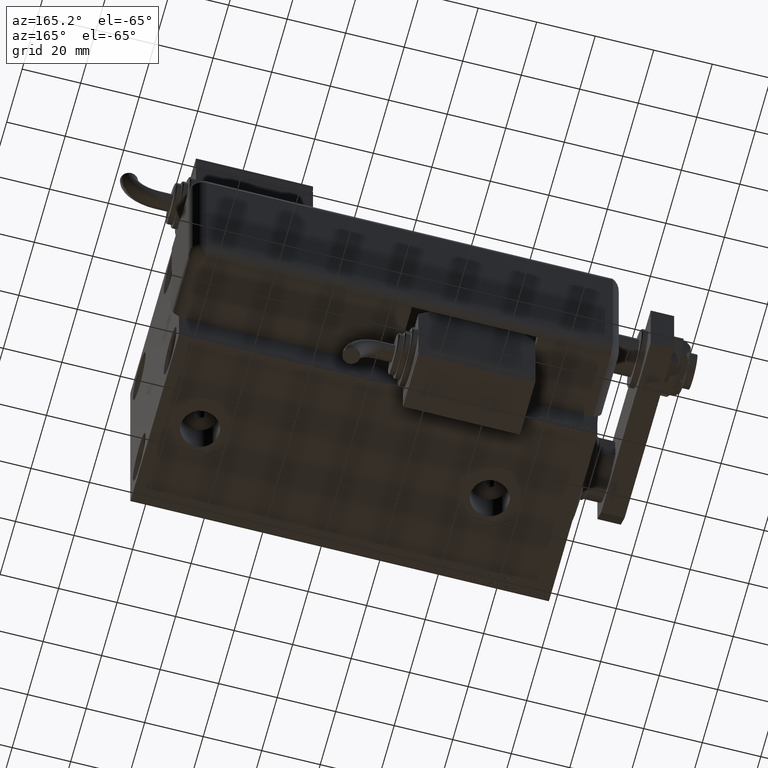
[diagram: clean part render]
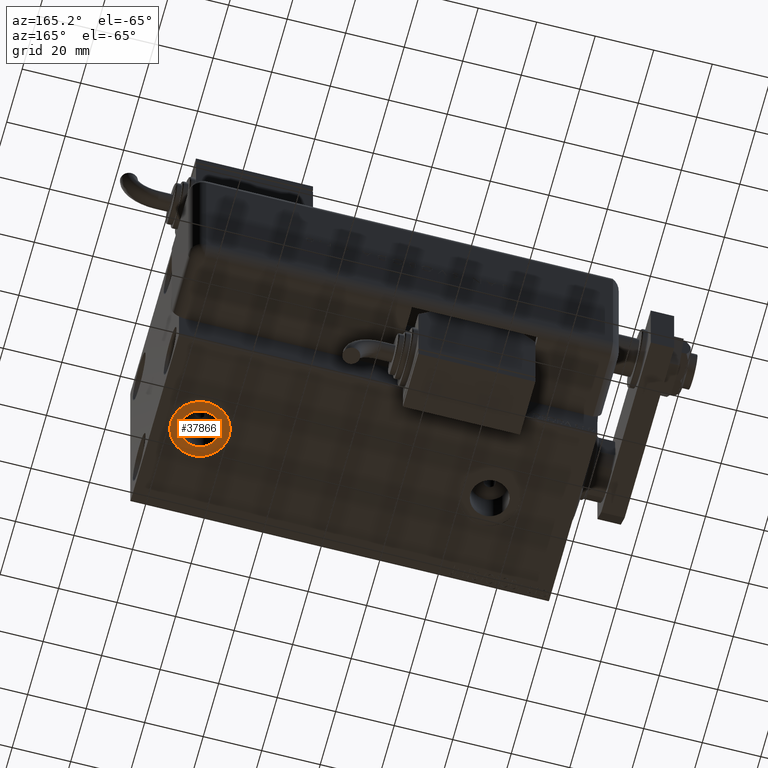
[diagram: same view with one face highlighted and labeled with its STEP entity id]
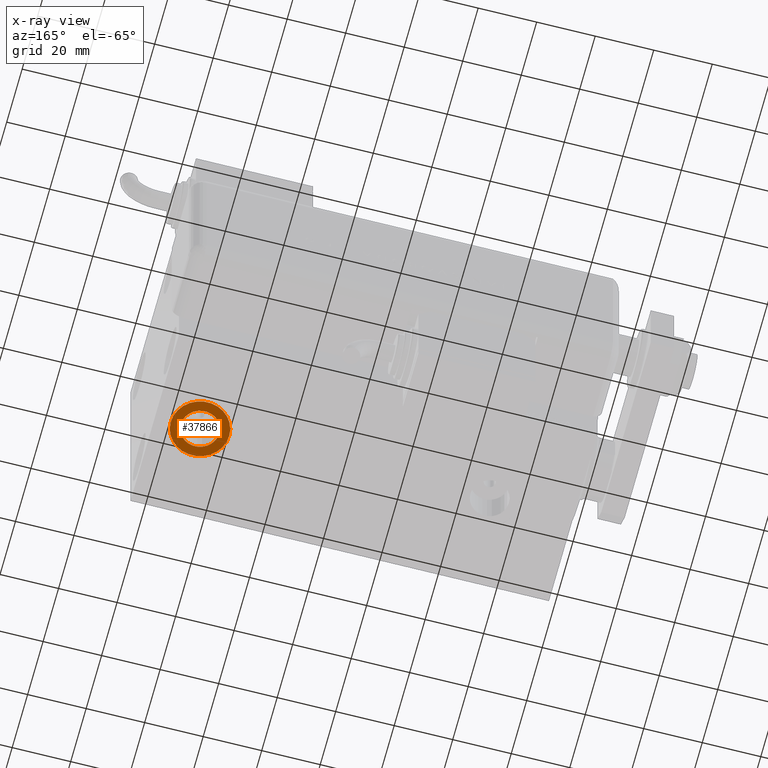
[diagram: x-ray of the same camera — body ghosted, the highlighted face saturated]
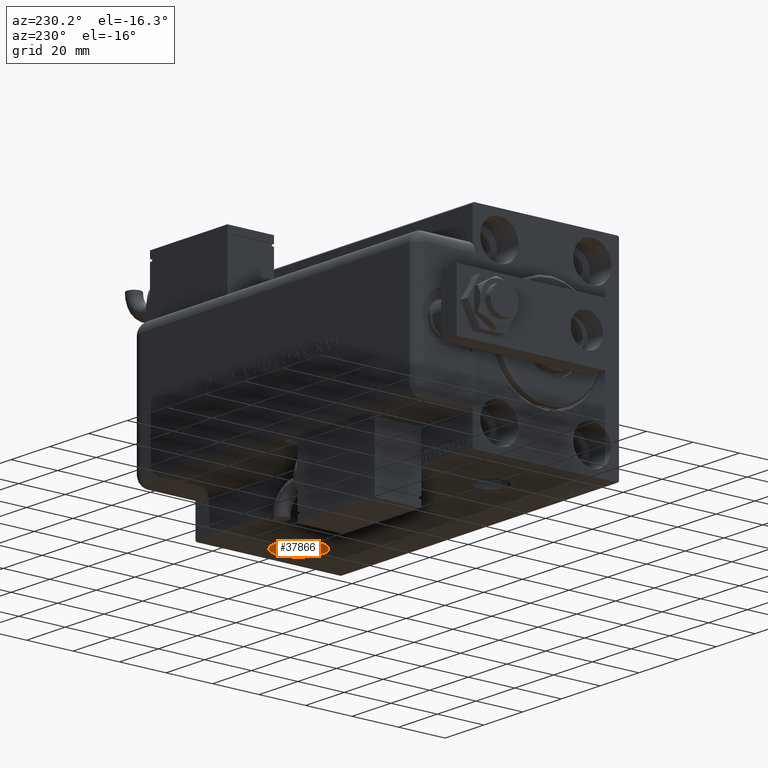
[diagram: same view with one face highlighted and labeled with its STEP entity id]
A machine part, auxiliary view. The second image highlights one B-rep face of the part: STEP entity #37866.
The next image is the same camera in x-ray: the body ghosted, the highlighted face saturated — about 0% of this face is hidden behind the body in this view.
A second angle (auxiliary view) of the same face is appended — the face is thin or edge-on in the first view.
In plain terms, the highlighted planar face has unit normal (0, 0, -1).
Its self-contained STEP definition (entity closure, byte-faithful):
#108 = VERTEX_POINT ( 'NONE', #19921 ) ;
#1171 = AXIS2_PLACEMENT_3D ( 'NONE', #6357, #44592, #53540 ) ;
#1449 = CARTESIAN_POINT ( 'NONE',  ( 137.5000000000000000, -1.323757379001398371E-14, -42.40000000000000568 ) ) ;
#1967 = AXIS2_PLACEMENT_3D ( 'NONE', #44335, #11339, #40327 ) ;
#2510 = EDGE_LOOP ( 'NONE', ( #14130, #54012 ) ) ;
#2946 = CIRCLE ( 'NONE', #6912, 6.580000000000002736 ) ;
#3399 = EDGE_CURVE ( 'NONE', #38848, #14201, #15926, .T. ) ;
#4570 = EDGE_LOOP ( 'NONE', ( #28643, #54650 ) ) ;
#5942 = VERTEX_POINT ( 'NONE', #51023 ) ;
#6357 = CARTESIAN_POINT ( 'NONE',  ( 127.5000000000000000, -1.446222058916133203E-14, -42.40000000000000568 ) ) ;
#6912 = AXIS2_PLACEMENT_3D ( 'NONE', #15674, #28958, #15977 ) ;
#8379 = FACE_BOUND ( 'NONE', #2510, .T. ) ;
#11339 = DIRECTION ( 'NONE',  ( 0.000000000000000000, 0.000000000000000000, -1.000000000000000000 ) ) ;
#12400 = DIRECTION ( 'NONE',  ( 0.000000000000000000, 0.000000000000000000, -1.000000000000000000 ) ) ;
#14130 = ORIENTED_EDGE ( 'NONE', *, *, #42278, .F. ) ;
#14201 = VERTEX_POINT ( 'NONE', #30788 ) ;
#15582 = CIRCLE ( 'NONE', #23465, 9.999999999999994671 ) ;
#15674 = CARTESIAN_POINT ( 'NONE',  ( 127.5000000000000000, -1.446222058916133203E-14, -42.40000000000000568 ) ) ;
#15926 = CIRCLE ( 'NONE', #1171, 9.999999999999994671 ) ;
#15977 = DIRECTION ( 'NONE',  ( -1.000000000000000000, 0.000000000000000000, 0.000000000000000000 ) ) ;
#17627 = PLANE ( 'NONE',  #27390 ) ;
#19365 = DIRECTION ( 'NONE',  ( 0.000000000000000000, 0.000000000000000000, -1.000000000000000000 ) ) ;
#19921 = CARTESIAN_POINT ( 'NONE',  ( 134.0800000000000125, -1.365640299532237457E-14, -42.40000000000000568 ) ) ;
#22617 = CIRCLE ( 'NONE', #1967, 6.580000000000002736 ) ;
#23465 = AXIS2_PLACEMENT_3D ( 'NONE', #28625, #19365, #48030 ) ;
#27390 = AXIS2_PLACEMENT_3D ( 'NONE', #36744, #12400, #59263 ) ;
#28625 = CARTESIAN_POINT ( 'NONE',  ( 127.5000000000000000, -1.446222058916133203E-14, -42.40000000000000568 ) ) ;
#28643 = ORIENTED_EDGE ( 'NONE', *, *, #38743, .T. ) ;
#28958 = DIRECTION ( 'NONE',  ( 0.000000000000000000, 0.000000000000000000, -1.000000000000000000 ) ) ;
#30788 = CARTESIAN_POINT ( 'NONE',  ( 117.5000000000000142, -1.446222058916133203E-14, -42.40000000000000568 ) ) ;
#36744 = CARTESIAN_POINT ( 'NONE',  ( 127.5000000000000000, -1.446222058916133203E-14, -42.40000000000000568 ) ) ;
#37866 = ADVANCED_FACE ( 'NONE', ( #8379, #60169 ), #17627, .T. ) ;
#38743 = EDGE_CURVE ( 'NONE', #14201, #38848, #15582, .T. ) ;
#38848 = VERTEX_POINT ( 'NONE', #1449 ) ;
#40327 = DIRECTION ( 'NONE',  ( -1.000000000000000000, 0.000000000000000000, 0.000000000000000000 ) ) ;
#42278 = EDGE_CURVE ( 'NONE', #5942, #108, #22617, .T. ) ;
#43027 = EDGE_CURVE ( 'NONE', #108, #5942, #2946, .T. ) ;
#44335 = CARTESIAN_POINT ( 'NONE',  ( 127.5000000000000000, -1.446222058916133203E-14, -42.40000000000000568 ) ) ;
#44592 = DIRECTION ( 'NONE',  ( 0.000000000000000000, 0.000000000000000000, -1.000000000000000000 ) ) ;
#48030 = DIRECTION ( 'NONE',  ( -1.000000000000000000, 0.000000000000000000, 0.000000000000000000 ) ) ;
#51023 = CARTESIAN_POINT ( 'NONE',  ( 120.9200000000000017, -1.446222058916133203E-14, -42.40000000000000568 ) ) ;
#53540 = DIRECTION ( 'NONE',  ( -1.000000000000000000, 0.000000000000000000, 0.000000000000000000 ) ) ;
#54012 = ORIENTED_EDGE ( 'NONE', *, *, #43027, .F. ) ;
#54650 = ORIENTED_EDGE ( 'NONE', *, *, #3399, .T. ) ;
#59263 = DIRECTION ( 'NONE',  ( -1.000000000000000000, 0.000000000000000000, -0.000000000000000000 ) ) ;
#60169 = FACE_OUTER_BOUND ( 'NONE', #4570, .T. ) ;